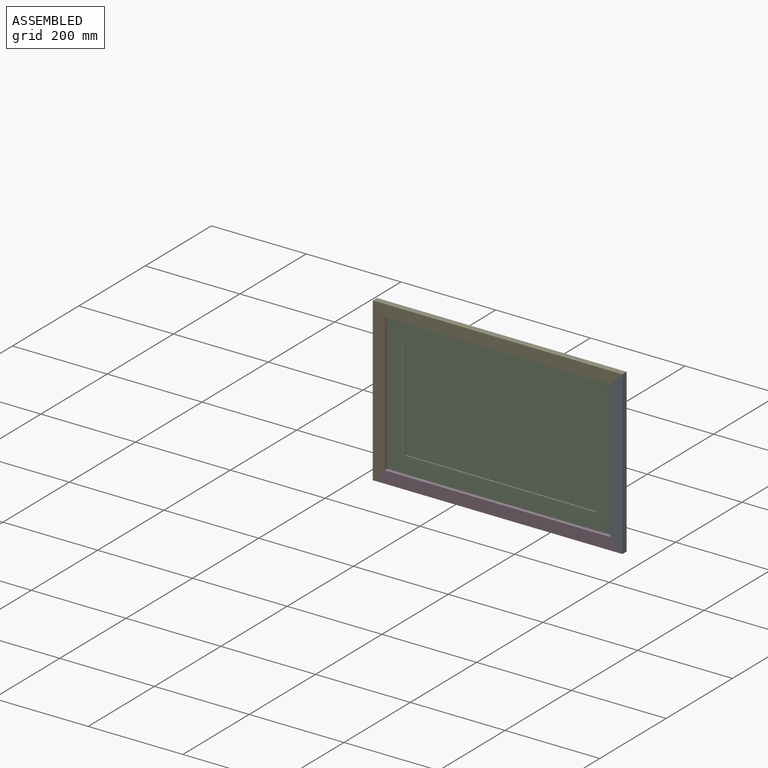
[diagram: assembled view]
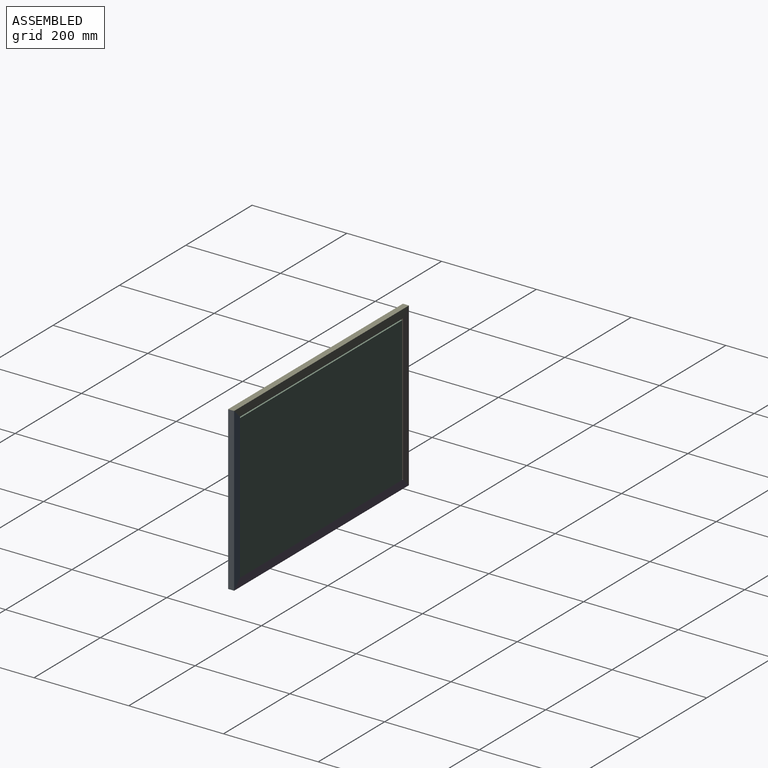
[diagram: assembled view, second angle]
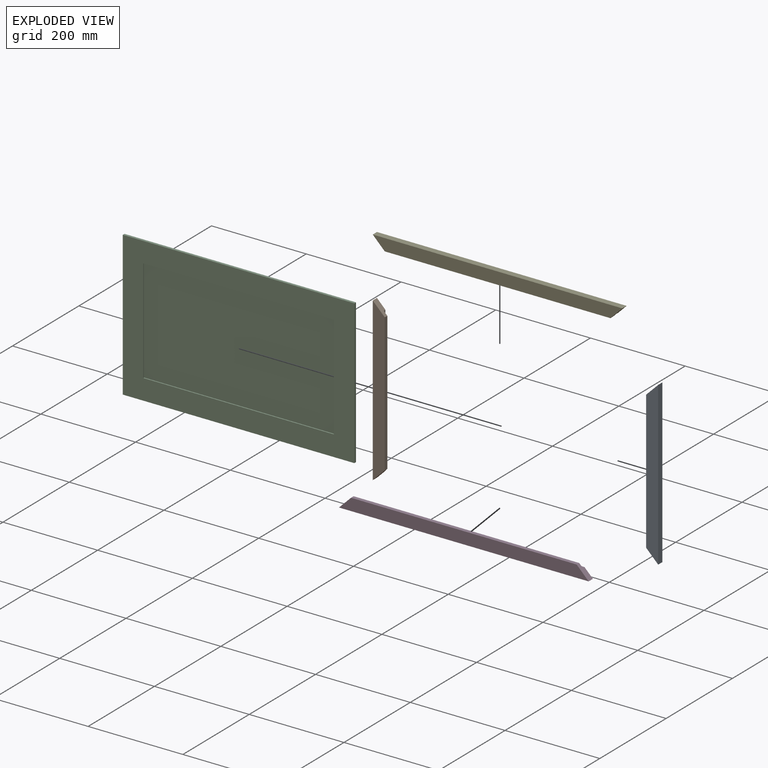
[diagram: exploded view]
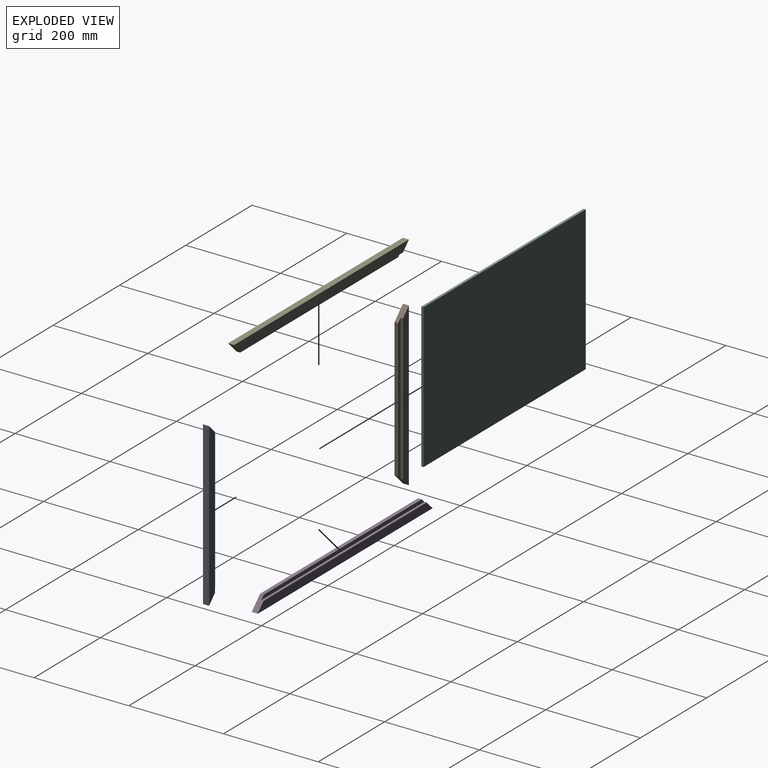
[diagram: exploded view, second angle]
ASSEMBLY  parts=5 mates=9
PART A: 8 faces, bbox 342.9x12.7x25.4 mm
  f0: plane 25.4x25.4mm, normal (-0.71,0,-0.71), area 402.5mm2, adj f2,f3,f4,f5,f6,f7
  f1: plane 25.4x25.4mm, normal (0.71,0,-0.71), area 402.5mm2, adj f2,f3,f4,f5,f6,f7
  f2: plane 342.9x12.7mm, normal (0,0,1), area 4354.8mm2, adj f0,f1,f4,f5
  f3: plane 292.1x7.7mm, normal (0,0,-1), area 2249.2mm2, adj f0,f1,f4,f6
  f4: plane 342.9x25.4mm, normal (0,-1,0), area 8064.5mm2, adj f0,f1,f2,f3
  f5: plane 342.9x17.81mm, normal (0,1,0), area 5788.8mm2, adj f0,f1,f2,f7
  f6: plane 307.29x7.59mm, normal (0,1,0), area 2275.7mm2, adj f0,f1,f3,f7
  f7: plane 307.29x5mm, normal (0,0,-1), area 1536.4mm2, adj f0,f1,f5,f6
PART B: same geometry as A
PART C: 11 faces, bbox 489x5.1x304.8 mm
  f0: plane 488.95x304.8mm, normal (0,-1,0), area 61090.2mm2, adj f1,f2,f3,f4,f6,f7,f8,f9
  f1: plane 488.95x5.08mm, normal (0,0,1), area 2483.9mm2, adj f0,f2,f4,f5
  f2: plane 304.8x5.08mm, normal (-1,0,0), area 1548.4mm2, adj f0,f1,f3,f5
  f3: plane 488.95x5.08mm, normal (0,0,-1), area 2483.9mm2, adj f0,f2,f4,f5
  f4: plane 304.8x5.08mm, normal (1,0,0), area 1548.4mm2, adj f0,f1,f3,f5
  f5: plane 488.95x304.8mm, normal (0,1,0), area 149032mm2, adj f1,f2,f3,f4
  f6: plane 402.59x2.54mm, normal (0,0,-1), area 1022.6mm2, adj f0,f7,f9,f10
  f7: plane 218.44x2.54mm, normal (1,0,0), area 554.8mm2, adj f0,f6,f8,f10
  f8: plane 402.59x2.54mm, normal (0,0,1), area 1022.6mm2, adj f0,f7,f9,f10
  f9: plane 218.44x2.54mm, normal (-1,0,0), area 554.8mm2, adj f0,f6,f8,f10
  f10: plane 402.59x218.44mm, normal (0,-1,0), area 87941.8mm2, adj f6,f7,f8,f9
PART D: 8 faces, bbox 527.1x12.7x25.4 mm
  f0: plane 25.4x25.4mm, normal (-0.71,0,-0.71), area 402.3mm2, adj f1,f3,f4,f5,f6,f7
  f1: plane 476.25x7.7mm, normal (0,0,-1), area 3667.1mm2, adj f0,f2,f4,f6
  f2: plane 25.4x25.4mm, normal (0.71,0,-0.71), area 402.3mm2, adj f1,f3,f4,f5,f6,f7
  f3: plane 527.05x12.7mm, normal (0,0,1), area 6693.5mm2, adj f0,f2,f4,f5
  f4: plane 527.05x25.4mm, normal (0,-1,0), area 12741.9mm2, adj f0,f1,f2,f3
  f5: plane 527.05x17.78mm, normal (0,1,0), area 9054.8mm2, adj f0,f2,f3,f7
  f6: plane 491.49x7.62mm, normal (0,1,0), area 3687.1mm2, adj f0,f1,f2,f7
  f7: plane 491.49x5mm, normal (0,0,-1), area 2457.5mm2, adj f0,f2,f5,f6
PART E: same geometry as D
PLACE A rot(axis=(0,1,0),90deg) t=(-748.4,-21.48,173.94)mm
PLACE B rot(axis=(0,-1,0),90deg) t=(-1275.45,-21.48,-168.96)mm
PLACE C t=(-1010.68,-21.4,1.22)mm
PLACE D rot(axis=(0,1,0),180deg) t=(-748.4,-21.48,-168.96)mm
PLACE E t=(-1275.45,-21.48,173.94)mm
MATE planar A.f4 <-> E.f4  axis (0,-1,0) through (-760.76,-34.18,2.49)mm
MATE planar B.f0 <-> D.f2  axis (0.71,0,-0.71) through (-1263.94,-28.34,-157.44)mm
MATE planar D.f0 <-> A.f1  axis (0.71,0,0.71) through (-759.91,-28.34,-157.45)mm
MATE planar D.f4 <-> B.f4  axis (0,-1,0) through (-1011.92,-34.18,-156.47)mm
MATE planar D.f7 <-> C.f3  axis (0,0,1) through (-1011.92,-23.98,-151.18)mm
MATE planar A.f4 <-> D.f4  axis (0,-1,0) through (-760.76,-34.18,2.49)mm
MATE planar C.f4 <-> A.f7  axis (1,0,0) through (-766.21,-23.94,1.22)mm
MATE planar A.f0 <-> E.f2  axis (-0.71,0,0.71) through (-759.91,-28.34,162.43)mm
MATE planar C.f0 <-> E.f6  axis (0,-1,0) through (-1010.68,-26.48,1.22)mm
